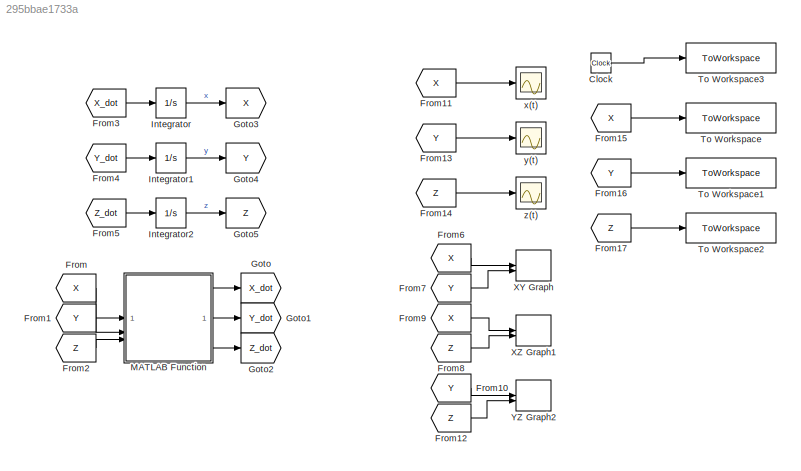
MODEL slx_295bbae1733a
KIND model
CONFIG AbsTol = auto
CONFIG EnableMultiTasking = off
CONFIG FixedStep = 0.01
CONFIG MaxStep = auto
CONFIG MinStep = auto
CONFIG RelTol = 1e-3
CONFIG SampleTimeConstraint = Unconstrained
CONFIG SolverName = ode4
CONFIG StartTime = 0.0
CONFIG StopTime = 100
BLOCK [Clock] Clock
BLOCK [From] From
  GotoTag = X
BLOCK [From] From1
  GotoTag = Y
BLOCK [From] From10
  GotoTag = Y
BLOCK [From] From11
  GotoTag = X
BLOCK [From] From12
  GotoTag = Z
BLOCK [From] From13
  GotoTag = Y
BLOCK [From] From14
  GotoTag = Z
BLOCK [From] From15
  GotoTag = X
BLOCK [From] From16
  GotoTag = Y
BLOCK [From] From17
  GotoTag = Z
BLOCK [From] From2
  GotoTag = Z
BLOCK [From] From3
  GotoTag = X_dot
BLOCK [From] From4
  GotoTag = Y_dot
BLOCK [From] From5
  GotoTag = Z_dot
BLOCK [From] From6
  GotoTag = X
BLOCK [From] From7
  GotoTag = Y
BLOCK [From] From8
  GotoTag = Z
BLOCK [From] From9
  GotoTag = X
BLOCK [Goto] Goto
  GotoTag = X_dot
BLOCK [Goto] Goto1
  GotoTag = Y_dot
BLOCK [Goto] Goto2
  GotoTag = Z_dot
BLOCK [Goto] Goto3
  GotoTag = X
BLOCK [Goto] Goto4
  GotoTag = Y
BLOCK [Goto] Goto5
  GotoTag = Z
BLOCK [Integrator] Integrator
  InitialCondition = 1
BLOCK [Integrator] Integrator1
  InitialCondition = 1
BLOCK [Integrator] Integrator2
  InitialCondition = 1
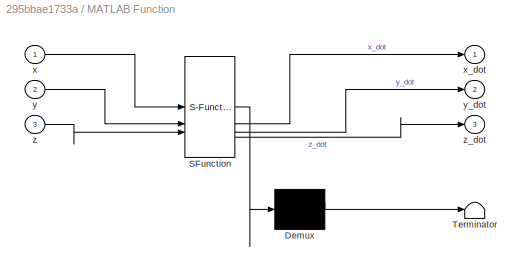
BLOCK [SubSystem] MATLAB Function
  ErrorFcn = Stateflow.Translate.translate
  PermitHierarchicalResolution = ExplicitOnly
  SFBlockType = MATLAB Function
  TreatAsAtomicUnit = on
BLOCK [Demux] MATLAB Function/ Demux 
  Outputs = 1
BLOCK [S-Function] MATLAB Function/ SFunction 
  EnableBusSupport = on
  FunctionName = sf_sfun
  PortCounts = [3 4]
  SFcnIsStateOwnerBlock = off
  SFunctionDeploymentMode = off
  Tag = Stateflow S-Function 2
BLOCK [Terminator] MATLAB Function/ Terminator 
BLOCK [Inport] MATLAB Function/x
BLOCK [Outport] MATLAB Function/x_dot
BLOCK [Inport] MATLAB Function/y
  Port = 2
BLOCK [Outport] MATLAB Function/y_dot
  Port = 2
BLOCK [Inport] MATLAB Function/z
  Port = 3
BLOCK [Outport] MATLAB Function/z_dot
  Port = 3
BLOCK [ToWorkspace] To Workspace
  FixptAsFi = on
  MaxDataPoints = inf
  SampleTime = -1
  VariableName = x_out
BLOCK [ToWorkspace] To Workspace1
  FixptAsFi = on
  MaxDataPoints = inf
  SampleTime = -1
  VariableName = y_out
BLOCK [ToWorkspace] To Workspace2
  FixptAsFi = on
  MaxDataPoints = inf
  SampleTime = -1
  VariableName = z_out
BLOCK [ToWorkspace] To Workspace3
  FixptAsFi = on
  MaxDataPoints = inf
  SampleTime = -1
  VariableName = t
BLOCK [Record] XY Graph
  CompatibilityTag = XY
  FileSettingsInternal = {"entries":[{"content":{"excelSettings":{"content":{},"type":"Streamout.ExcelSettings"}},"type":"Streamout.FileSettingStorage","uuid":""}],"packageUris":["http:\/\/schema.mathworks.com\/mf0\/streamout_blocks\/R2020a"],"version":"1.0"}  <repeated x3 — deduplicated; at blocks: XY Graph, XZ Graph1, YZ Graph2>
  Layout = [1 1]
  SignalsInternal = {"entries":[{"content":{"signals":[{"content":{"blockPath":[],"dimensions":[1],"domain":"","lineColor":"#64d413","lineWidth":2,"port":1,"sid":[""],"signalID":1,"signalName":"From6"},"type":"RecordBlkView.Signal","uuid":""},{"content":{"blockPath":[],"dimensions":[1],"domain":"","lineColor":"#ff13a6","lineWidth":2,"port":2,"sid":[""],"signalID":2,"signalName":"From7"},"type":"RecordBlkView.Signal",...<+156ch>
BLOCK [Record] XZ Graph1
  CompatibilityTag = XY
  Layout = [1 1]
  SignalsInternal = {"entries":[{"content":{"signals":[{"content":{"blockPath":[],"dimensions":[1],"domain":"","lineColor":"#fe330a","lineWidth":2,"port":1,"sid":[""],"signalID":1,"signalName":"From9"},"type":"RecordBlkView.Signal","uuid":""},{"content":{"blockPath":[],"dimensions":[1],"domain":"","lineColor":"#22b573","lineWidth":2,"port":2,"sid":[""],"signalID":2,"signalName":"From8"},"type":"RecordBlkView.Signal",...<+156ch>
BLOCK [Record] YZ Graph2
  CompatibilityTag = XY
  Layout = [1 1]
  SignalsInternal = {"entries":[{"content":{"signals":[{"content":{"blockPath":[],"dimensions":[1],"domain":"","lineColor":"#a2142f","plots":[ 1 ],"port":1,"sid":[""],"signalID":1,"signalName":"From10"},"type":"RecordBlkView.Signal","uuid":""},{"content":{"blockPath":[],"dimensions":[1],"domain":"","lineColor":"#d95319","lineWidth":2,"port":2,"sid":[""],"signalID":2,"signalName":"From12"},"type":"RecordBlkView.Signal...<+158ch>
BLOCK [Scope] x(t)
  Floating = off
  NumInputPorts = 1
  ScopeSpecificationString = Simulink.scopes.TimeScopeBlockCfg('CurrentConfiguration', extmgr.ConfigurationSet(extmgr.Configuration('Core','General UI',true),extmgr.Configuration('Core','Source UI',true),extmgr.Configuration('Sources','WiredSimulink',true),extmgr.Configuration('Visuals','Time Domain',true,'SerializedDisplays',{struct('MinYLimReal','-29.51444','MaxYLimReal','4.39049','YLabelReal','','MinYLimMag','0.00000','Max...<+1488ch>
BLOCK [Scope] y(t)
  Floating = off
  NumInputPorts = 1
  ScopeSpecificationString = Simulink.scopes.TimeScopeBlockCfg('CurrentConfiguration', extmgr.ConfigurationSet(extmgr.Configuration('Core','General UI',true),extmgr.Configuration('Core','Source UI',true),extmgr.Configuration('Sources','WiredSimulink',true,'DataLoggingVariableName','ScopeData1'),extmgr.Configuration('Visuals','Time Domain',true,'SerializedDisplays',{struct('MinYLimReal','-31.03075','MaxYLimReal','33.65172','YL...<+1488ch>
BLOCK [Scope] z(t)
  Floating = off
  NumInputPorts = 1
  ScopeSpecificationString = Simulink.scopes.TimeScopeBlockCfg('CurrentConfiguration', extmgr.ConfigurationSet(extmgr.Configuration('Core','General UI',true),extmgr.Configuration('Core','Source UI',true),extmgr.Configuration('Sources','WiredSimulink',true,'DataLoggingVariableName','ScopeData2'),extmgr.Configuration('Visuals','Time Domain',true,'SerializedDisplays',{struct('MinYLimReal','-4.89729','MaxYLimReal','53.69298','YLa...<+1483ch>
LINE Clock:1 -> To Workspace3:1
LINE From10:1 -> YZ Graph2:1
LINE From11:1 -> x(t):1
LINE From12:1 -> YZ Graph2:2
LINE From13:1 -> y(t):1
LINE From14:1 -> z(t):1
LINE From15:1 -> To Workspace:1
LINE From16:1 -> To Workspace1:1
LINE From17:1 -> To Workspace2:1
LINE From1:1 -> MATLAB Function:2
LINE From2:1 -> MATLAB Function:3
LINE From3:1 -> Integrator:1
LINE From4:1 -> Integrator1:1
LINE From5:1 -> Integrator2:1
LINE From6:1 -> XY Graph:1
LINE From7:1 -> XY Graph:2
LINE From8:1 -> XZ Graph1:2
LINE From9:1 -> XZ Graph1:1
LINE From:1 -> MATLAB Function:1
LINE Integrator1:1 -> Goto4:1
LINE Integrator2:1 -> Goto5:1
LINE Integrator:1 -> Goto3:1
LINE MATLAB Function:1 -> Goto:1
LINE MATLAB Function:2 -> Goto1:1
LINE MATLAB Function:3 -> Goto2:1
CHART MATLAB Function states=1 transitions=1
  STATE_LABEL 'eML_blk_kernel()'
  STATE_LABEL 'SCRIPT:\nfunction [x_dot, y_dot, z_dot] = fcn(x, y, z)\nk1 = 15; %tweak values\nk2 = 30;\nk3 = 10;\n\nsigma = 10;\nrho = 28;\nbeta = 8/3;\n\nu1  = -k1 * x;\nu2 = -k2 * y;\nu3 = -k3 * z;\n\nx_dot = sigma * (y - x);\ny_dot = x * (rho - z) - y ;\nz_dot = x * y - beta * z;\n\n%plot commands\n%subplot(3,1,3)\n%plot(out.t, out.z_out)\n%plot3(out.x_out, out.y_out,out.z_out)'
CHART  states=0 transitions=0
